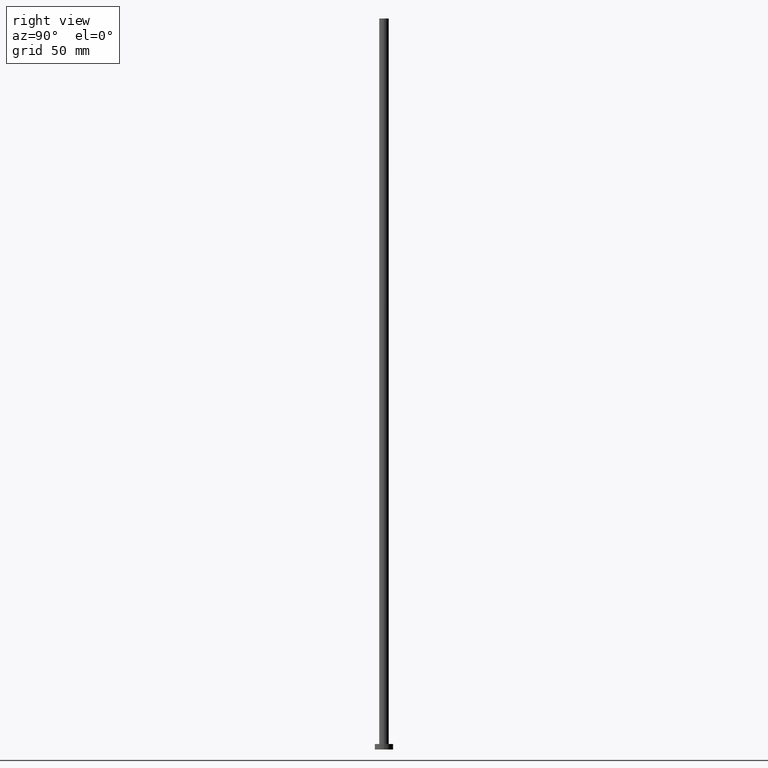
[diagram: clean part render]
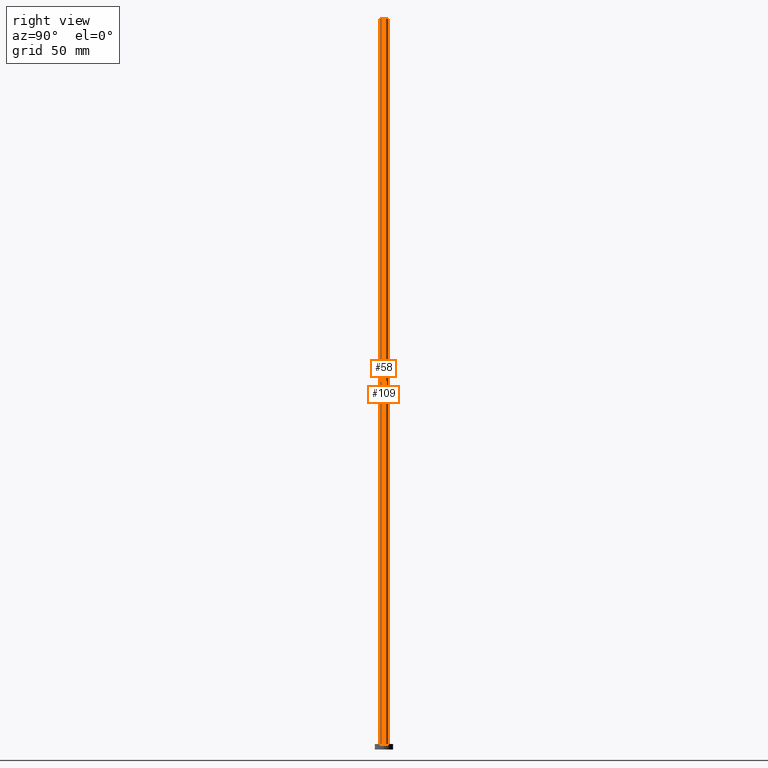
[diagram: same view with one multi-face feature highlighted, each face labeled with its STEP entity id]
A machine part, right view. The highlighted faces form ONE feature: a constant-radius fillet chain: 2 tangent blend faces with common blend radius 2.6 mm. The faces share edges in the B-rep.
Their STEP definitions:
[1] entity #109 (Cylinder):
#1 = EDGE_CURVE ( 'NONE', #85, #174, #166, .T. ) ;
#2 = VECTOR ( 'NONE', #37, 1000.000000000000000 ) ;
#4 = LINE ( 'NONE', #101, #2 ) ;
#9 = DIRECTION ( 'NONE',  ( -0.000000000000000000, -0.000000000000000000, -1.000000000000000000 ) ) ;
#13 = CARTESIAN_POINT ( 'NONE',  ( -2.600000000000000089, 0.000000000000000000, 400.0000000000000000 ) ) ;
#21 = ORIENTED_EDGE ( 'NONE', *, *, #226, .F. ) ;
#37 = DIRECTION ( 'NONE',  ( -0.000000000000000000, -0.000000000000000000, -1.000000000000000000 ) ) ;
#43 = CARTESIAN_POINT ( 'NONE',  ( 0.000000000000000000, 0.000000000000000000, 3.000000000000000000 ) ) ;
#50 = FACE_OUTER_BOUND ( 'NONE', #228, .T. ) ;
#53 = CIRCLE ( 'NONE', #137, 2.600000000000000089 ) ;
#60 = ORIENTED_EDGE ( 'NONE', *, *, #1, .F. ) ;
#63 = CARTESIAN_POINT ( 'NONE',  ( -2.600000000000000089, 0.000000000000000000, 3.000000000000000000 ) ) ;
#66 = DIRECTION ( 'NONE',  ( 1.000000000000000000, 0.000000000000000000, 0.000000000000000000 ) ) ;
#80 = ORIENTED_EDGE ( 'NONE', *, *, #158, .T. ) ;
#85 = VERTEX_POINT ( 'NONE', #222 ) ;
#87 = CARTESIAN_POINT ( 'NONE',  ( 0.000000000000000000, 0.000000000000000000, 400.0000000000000000 ) ) ;
#93 = CARTESIAN_POINT ( 'NONE',  ( 2.600000000000000089, 3.184081677783118191E-16, 400.0000000000000000 ) ) ;
#101 = CARTESIAN_POINT ( 'NONE',  ( -2.600000000000000089, 0.000000000000000000, 400.0000000000000000 ) ) ;
#105 = LINE ( 'NONE', #93, #130 ) ;
#107 = DIRECTION ( 'NONE',  ( 0.000000000000000000, 0.000000000000000000, 1.000000000000000000 ) ) ;
#108 = VERTEX_POINT ( 'NONE', #155 ) ;
#109 = ADVANCED_FACE ( 'NONE', ( #50 ), #190, .T. ) ;
#122 = VERTEX_POINT ( 'NONE', #63 ) ;
#130 = VECTOR ( 'NONE', #234, 1000.000000000000000 ) ;
#137 = AXIS2_PLACEMENT_3D ( 'NONE', #43, #220, #66 ) ;
#149 = ORIENTED_EDGE ( 'NONE', *, *, #184, .T. ) ;
#155 = CARTESIAN_POINT ( 'NONE',  ( 2.600000000000000089, 3.184081677783118191E-16, 3.000000000000000000 ) ) ;
#158 = EDGE_CURVE ( 'NONE', #108, #122, #53, .T. ) ;
#166 = CIRCLE ( 'NONE', #199, 2.600000000000000089 ) ;
#174 = VERTEX_POINT ( 'NONE', #13 ) ;
#177 = CARTESIAN_POINT ( 'NONE',  ( 0.000000000000000000, 0.000000000000000000, 400.0000000000000000 ) ) ;
#180 = AXIS2_PLACEMENT_3D ( 'NONE', #177, #9, #249 ) ;
#184 = EDGE_CURVE ( 'NONE', #85, #108, #105, .T. ) ;
#188 = DIRECTION ( 'NONE',  ( 1.000000000000000000, 0.000000000000000000, 0.000000000000000000 ) ) ;
#190 = CYLINDRICAL_SURFACE ( 'NONE', #180, 2.600000000000000089 ) ;
#199 = AXIS2_PLACEMENT_3D ( 'NONE', #87, #107, #188 ) ;
#220 = DIRECTION ( 'NONE',  ( 0.000000000000000000, 0.000000000000000000, 1.000000000000000000 ) ) ;
#222 = CARTESIAN_POINT ( 'NONE',  ( 2.600000000000000089, 3.184081677783118191E-16, 400.0000000000000000 ) ) ;
#226 = EDGE_CURVE ( 'NONE', #174, #122, #4, .T. ) ;
#228 = EDGE_LOOP ( 'NONE', ( #60, #149, #80, #21 ) ) ;
#234 = DIRECTION ( 'NONE',  ( -0.000000000000000000, -0.000000000000000000, -1.000000000000000000 ) ) ;
#249 = DIRECTION ( 'NONE',  ( -1.000000000000000000, 0.000000000000000000, 0.000000000000000000 ) ) ;
[2] entity #58 (Cylinder):
#2 = VECTOR ( 'NONE', #37, 1000.000000000000000 ) ;
#4 = LINE ( 'NONE', #101, #2 ) ;
#10 = CARTESIAN_POINT ( 'NONE',  ( 0.000000000000000000, 0.000000000000000000, 400.0000000000000000 ) ) ;
#11 = EDGE_LOOP ( 'NONE', ( #178, #29, #246, #221 ) ) ;
#13 = CARTESIAN_POINT ( 'NONE',  ( -2.600000000000000089, 0.000000000000000000, 400.0000000000000000 ) ) ;
#25 = CARTESIAN_POINT ( 'NONE',  ( 0.000000000000000000, 0.000000000000000000, 400.0000000000000000 ) ) ;
#29 = ORIENTED_EDGE ( 'NONE', *, *, #253, .F. ) ;
#33 = DIRECTION ( 'NONE',  ( -0.000000000000000000, -0.000000000000000000, -1.000000000000000000 ) ) ;
#37 = DIRECTION ( 'NONE',  ( -0.000000000000000000, -0.000000000000000000, -1.000000000000000000 ) ) ;
#40 = EDGE_CURVE ( 'NONE', #122, #108, #146, .T. ) ;
#44 = DIRECTION ( 'NONE',  ( 0.000000000000000000, 0.000000000000000000, 1.000000000000000000 ) ) ;
#58 = ADVANCED_FACE ( 'NONE', ( #135 ), #157, .T. ) ;
#63 = CARTESIAN_POINT ( 'NONE',  ( -2.600000000000000089, 0.000000000000000000, 3.000000000000000000 ) ) ;
#85 = VERTEX_POINT ( 'NONE', #222 ) ;
#89 = DIRECTION ( 'NONE',  ( 1.000000000000000000, 0.000000000000000000, 0.000000000000000000 ) ) ;
#92 = CIRCLE ( 'NONE', #118, 2.600000000000000089 ) ;
#93 = CARTESIAN_POINT ( 'NONE',  ( 2.600000000000000089, 3.184081677783118191E-16, 400.0000000000000000 ) ) ;
#100 = DIRECTION ( 'NONE',  ( -1.000000000000000000, 0.000000000000000000, 0.000000000000000000 ) ) ;
#101 = CARTESIAN_POINT ( 'NONE',  ( -2.600000000000000089, 0.000000000000000000, 400.0000000000000000 ) ) ;
#105 = LINE ( 'NONE', #93, #130 ) ;
#108 = VERTEX_POINT ( 'NONE', #155 ) ;
#114 = AXIS2_PLACEMENT_3D ( 'NONE', #179, #196, #193 ) ;
#118 = AXIS2_PLACEMENT_3D ( 'NONE', #25, #44, #89 ) ;
#122 = VERTEX_POINT ( 'NONE', #63 ) ;
#130 = VECTOR ( 'NONE', #234, 1000.000000000000000 ) ;
#135 = FACE_OUTER_BOUND ( 'NONE', #11, .T. ) ;
#146 = CIRCLE ( 'NONE', #114, 2.600000000000000089 ) ;
#155 = CARTESIAN_POINT ( 'NONE',  ( 2.600000000000000089, 3.184081677783118191E-16, 3.000000000000000000 ) ) ;
#157 = CYLINDRICAL_SURFACE ( 'NONE', #185, 2.600000000000000089 ) ;
#174 = VERTEX_POINT ( 'NONE', #13 ) ;
#178 = ORIENTED_EDGE ( 'NONE', *, *, #184, .F. ) ;
#179 = CARTESIAN_POINT ( 'NONE',  ( 0.000000000000000000, 0.000000000000000000, 3.000000000000000000 ) ) ;
#184 = EDGE_CURVE ( 'NONE', #85, #108, #105, .T. ) ;
#185 = AXIS2_PLACEMENT_3D ( 'NONE', #10, #33, #100 ) ;
#193 = DIRECTION ( 'NONE',  ( 1.000000000000000000, 0.000000000000000000, 0.000000000000000000 ) ) ;
#196 = DIRECTION ( 'NONE',  ( 0.000000000000000000, 0.000000000000000000, 1.000000000000000000 ) ) ;
#221 = ORIENTED_EDGE ( 'NONE', *, *, #40, .T. ) ;
#222 = CARTESIAN_POINT ( 'NONE',  ( 2.600000000000000089, 3.184081677783118191E-16, 400.0000000000000000 ) ) ;
#226 = EDGE_CURVE ( 'NONE', #174, #122, #4, .T. ) ;
#234 = DIRECTION ( 'NONE',  ( -0.000000000000000000, -0.000000000000000000, -1.000000000000000000 ) ) ;
#246 = ORIENTED_EDGE ( 'NONE', *, *, #226, .T. ) ;
#253 = EDGE_CURVE ( 'NONE', #174, #85, #92, .T. ) ;